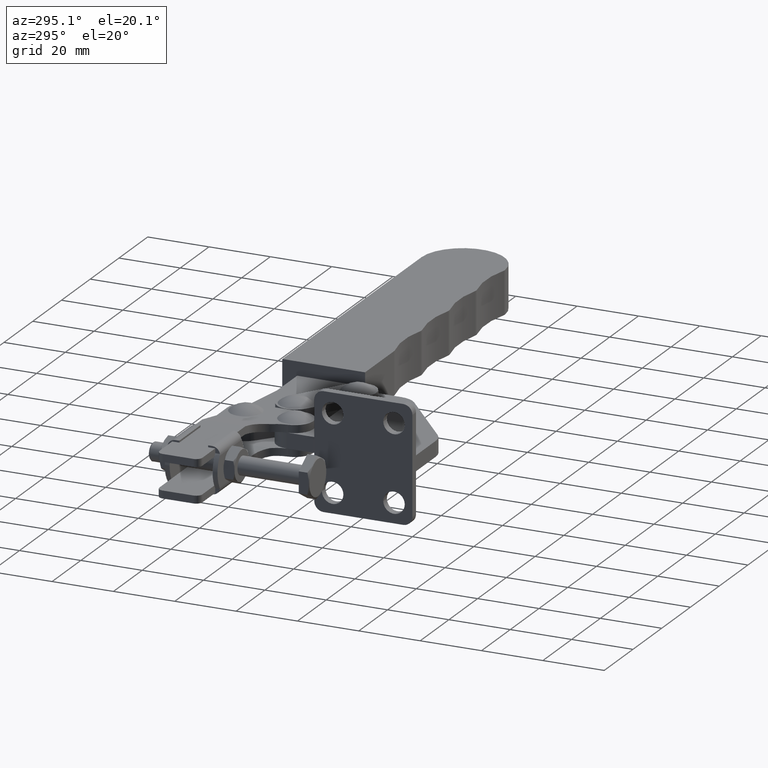
[diagram: clean part render]
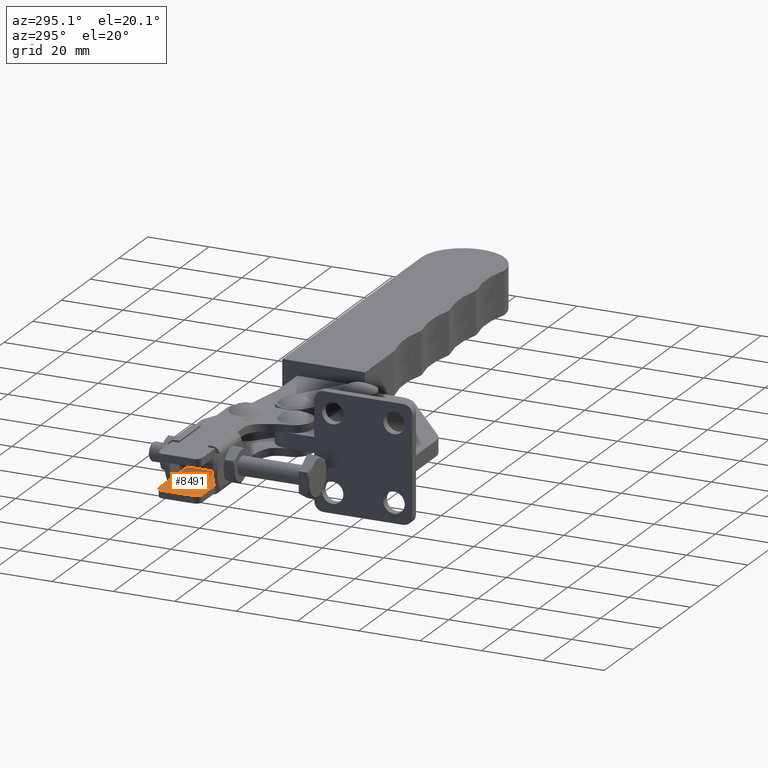
[diagram: same view with one face highlighted and labeled with its STEP entity id]
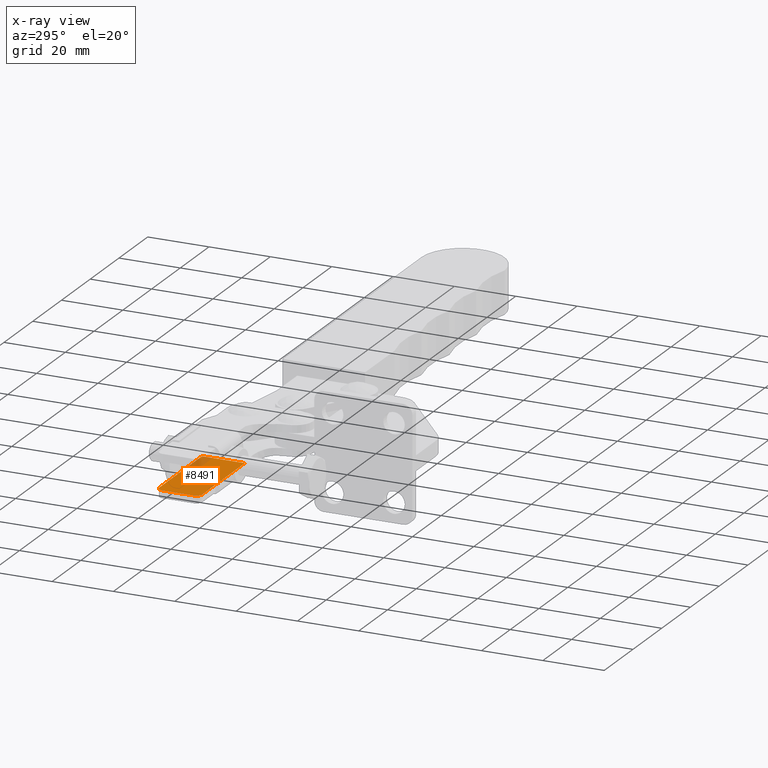
[diagram: x-ray of the same camera — body ghosted, the highlighted face saturated]
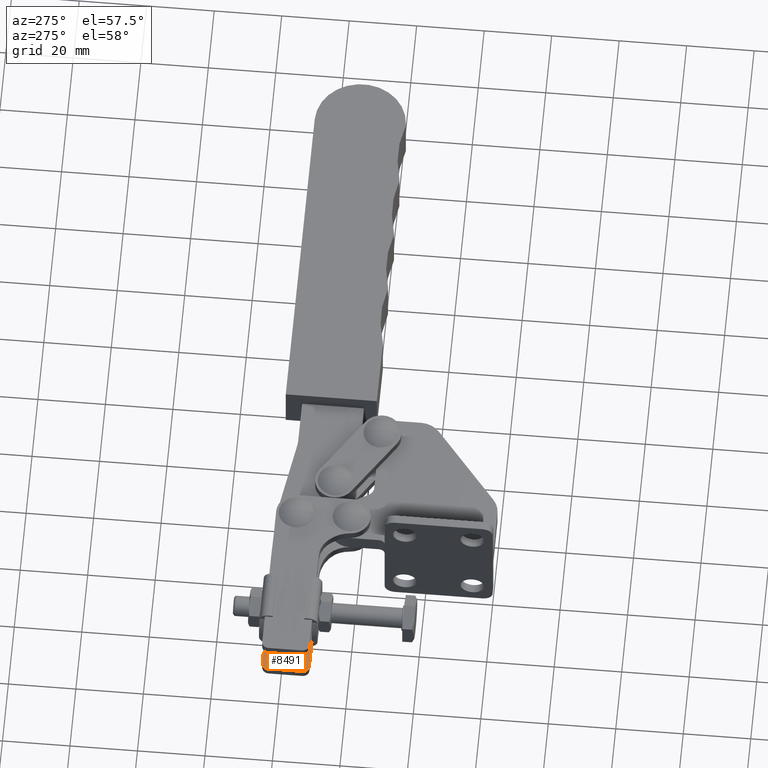
[diagram: same view with one face highlighted and labeled with its STEP entity id]
A machine part, auxiliary view. The second image highlights one B-rep face of the part: STEP entity #8491.
The next image is the same camera in x-ray: the body ghosted, the highlighted face saturated — about 7% of this face is hidden behind the body in this view.
A second angle (auxiliary view) of the same face is appended — the face is thin or edge-on in the first view.
In plain terms, the highlighted planar face has unit normal (0, 0, -1).
Its self-contained STEP definition (entity closure, byte-faithful):
#122 = EDGE_CURVE ( 'NONE', #971, #7084, #4651, .T. ) ;
#217 = VERTEX_POINT ( 'NONE', #9430 ) ;
#241 = CARTESIAN_POINT ( 'NONE',  ( -7.747350782842770100, 51.00043923984380700, -4.500000000001539200 ) ) ;
#301 = DIRECTION ( 'NONE',  ( -0.9999999996937321000, 2.474946245868171700E-005, -9.394306101835713400E-015 ) ) ;
#338 = AXIS2_PLACEMENT_3D ( 'NONE', #1276, #6440, #6230 ) ;
#671 = VECTOR ( 'NONE', #7158, 1000.000000000000000 ) ;
#686 = LINE ( 'NONE', #1033, #671 ) ;
#708 = LINE ( 'NONE', #3813, #8730 ) ;
#776 = VERTEX_POINT ( 'NONE', #241 ) ;
#933 = EDGE_CURVE ( 'NONE', #217, #776, #708, .T. ) ;
#971 = VERTEX_POINT ( 'NONE', #6425 ) ;
#1004 = EDGE_LOOP ( 'NONE', ( #7952, #4008, #1633, #5037, #9885, #6422 ) ) ;
#1033 = CARTESIAN_POINT ( 'NONE',  ( -39.29980198919727000, 51.00122014605063500, -4.500000000001841200 ) ) ;
#1276 = CARTESIAN_POINT ( 'NONE',  ( -39.29945549672284200, 65.00122014176301400, -4.500000000001841200 ) ) ;
#1633 = ORIENTED_EDGE ( 'NONE', *, *, #2538, .T. ) ;
#1645 = VERTEX_POINT ( 'NONE', #6066 ) ;
#1670 = AXIS2_PLACEMENT_3D ( 'NONE', #6903, #7137, #8288 ) ;
#2371 = CARTESIAN_POINT ( 'NONE',  ( -39.29950499564775200, 63.00122014237558000, -4.500000000001843000 ) ) ;
#2517 = PLANE ( 'NONE',  #338 ) ;
#2538 = EDGE_CURVE ( 'NONE', #217, #971, #5868, .T. ) ;
#3297 = VERTEX_POINT ( 'NONE', #6007 ) ;
#3625 = DIRECTION ( 'NONE',  ( -2.474946245868171700E-005, -0.9999999996937321000, -3.848776368506596200E-017 ) ) ;
#3813 = CARTESIAN_POINT ( 'NONE',  ( -7.747004290368345800, 65.00043923555614400, -4.500000000001541900 ) ) ;
#4008 = ORIENTED_EDGE ( 'NONE', *, *, #933, .F. ) ;
#4310 = AXIS2_PLACEMENT_3D ( 'NONE', #4575, #5716, #6019 ) ;
#4575 = CARTESIAN_POINT ( 'NONE',  ( -37.29950499626032500, 63.00117064345064900, -4.500000000001820800 ) ) ;
#4651 = CIRCLE ( 'NONE', #4310, 1.999999999999999800 ) ;
#4659 = VECTOR ( 'NONE', #301, 1000.000000000000000 ) ;
#4804 = VECTOR ( 'NONE', #3625, 1000.000000000000000 ) ;
#5037 = ORIENTED_EDGE ( 'NONE', *, *, #122, .T. ) ;
#5518 = CARTESIAN_POINT ( 'NONE',  ( -39.29945549672284200, 65.00122014176301400, -4.500000000001841200 ) ) ;
#5716 = DIRECTION ( 'NONE',  ( -9.394307051510041400E-015, -3.825525964708564000E-017, 1.000000000000000000 ) ) ;
#5868 = LINE ( 'NONE', #5518, #4659 ) ;
#6007 = CARTESIAN_POINT ( 'NONE',  ( -37.29980198980979400, 51.00117064712571800, -4.500000000001828800 ) ) ;
#6019 = DIRECTION ( 'NONE',  ( 0.9999999996937321000, -2.474946245861753600E-005, 9.540979117872440600E-015 ) ) ;
#6066 = CARTESIAN_POINT ( 'NONE',  ( -39.29975249027232600, 53.00122014543813300, -4.500000000001841200 ) ) ;
#6230 = DIRECTION ( 'NONE',  ( 0.9999999996937321000, -2.474946245868171700E-005, 9.394306101835711800E-015 ) ) ;
#6288 = CIRCLE ( 'NONE', #1670, 2.000000000000006700 ) ;
#6422 = ORIENTED_EDGE ( 'NONE', *, *, #7294, .T. ) ;
#6425 = CARTESIAN_POINT ( 'NONE',  ( -37.29945549733538700, 65.00117064283813300, -4.500000000001891800 ) ) ;
#6440 = DIRECTION ( 'NONE',  ( 9.394307051510000400E-015, 3.825525964708563400E-017, -1.000000000000000000 ) ) ;
#6574 = EDGE_CURVE ( 'NONE', #3297, #776, #686, .T. ) ;
#6903 = CARTESIAN_POINT ( 'NONE',  ( -37.29975249088489200, 53.00117064651321600, -4.500000000001817200 ) ) ;
#7084 = VERTEX_POINT ( 'NONE', #2371 ) ;
#7137 = DIRECTION ( 'NONE',  ( -9.394307051510041400E-015, -3.825525964708564000E-017, 1.000000000000000000 ) ) ;
#7158 = DIRECTION ( 'NONE',  ( 0.9999999996937321000, -2.474946245868171700E-005, 9.394306101835713400E-015 ) ) ;
#7294 = EDGE_CURVE ( 'NONE', #1645, #3297, #6288, .T. ) ;
#7747 = DIRECTION ( 'NONE',  ( -2.474946245868171700E-005, -0.9999999996937321000, -3.848776368506596200E-017 ) ) ;
#7952 = ORIENTED_EDGE ( 'NONE', *, *, #6574, .T. ) ;
#8288 = DIRECTION ( 'NONE',  ( 0.9999999996937321000, -2.474946245861745100E-005, 9.540979117872407500E-015 ) ) ;
#8491 = ADVANCED_FACE ( 'NONE', ( #9091 ), #2517, .F. ) ;
#8569 = CARTESIAN_POINT ( 'NONE',  ( -39.29945549672284200, 65.00122014176301400, -4.500000000001841200 ) ) ;
#8730 = VECTOR ( 'NONE', #7747, 1000.000000000000000 ) ;
#8750 = EDGE_CURVE ( 'NONE', #7084, #1645, #8970, .T. ) ;
#8970 = LINE ( 'NONE', #8569, #4804 ) ;
#9091 = FACE_OUTER_BOUND ( 'NONE', #1004, .T. ) ;
#9430 = CARTESIAN_POINT ( 'NONE',  ( -7.747004290368345800, 65.00043923555614400, -4.500000000001541900 ) ) ;
#9885 = ORIENTED_EDGE ( 'NONE', *, *, #8750, .T. ) ;